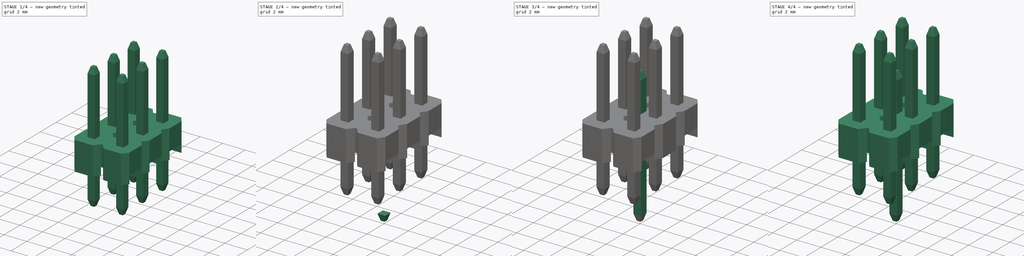
[diagram: build sequence overview — one tinted view per stage of 4, left to right]
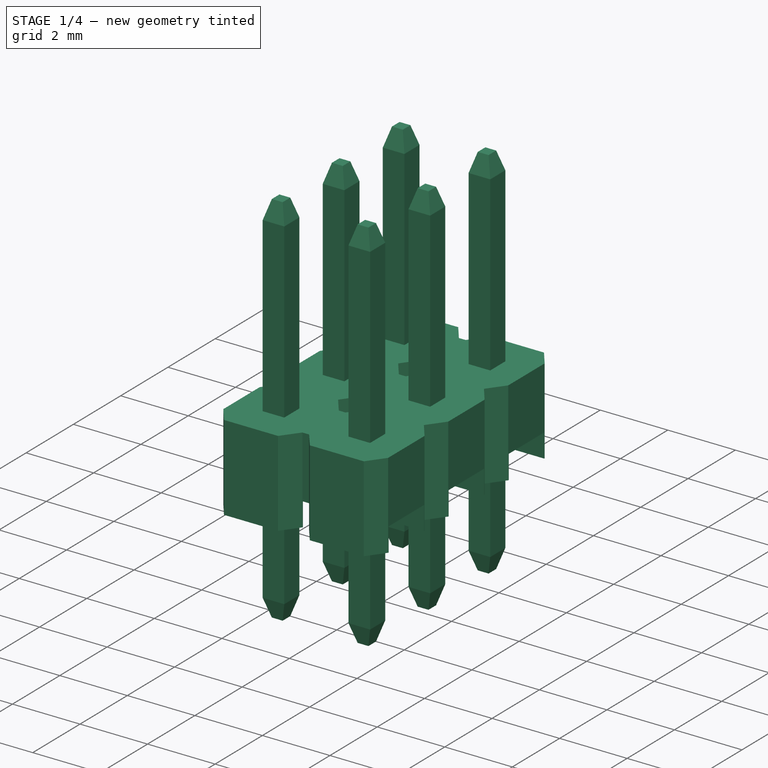
[diagram: stage 1 of 4 — iso view after this stage's code; geometry added in this stage tinted green]
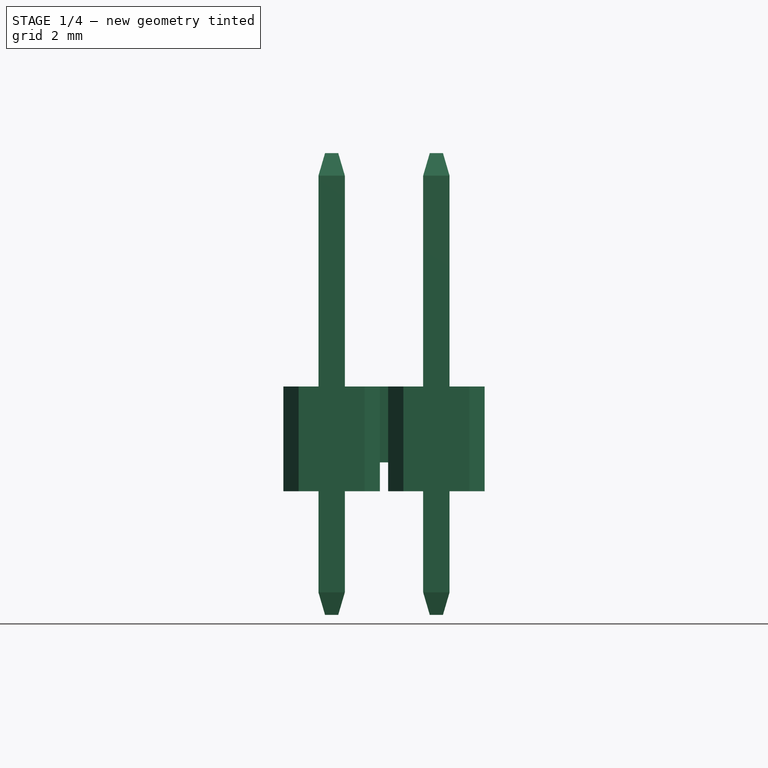
[diagram: stage 1 of 4 — front view after this stage's code; geometry added in this stage tinted green]
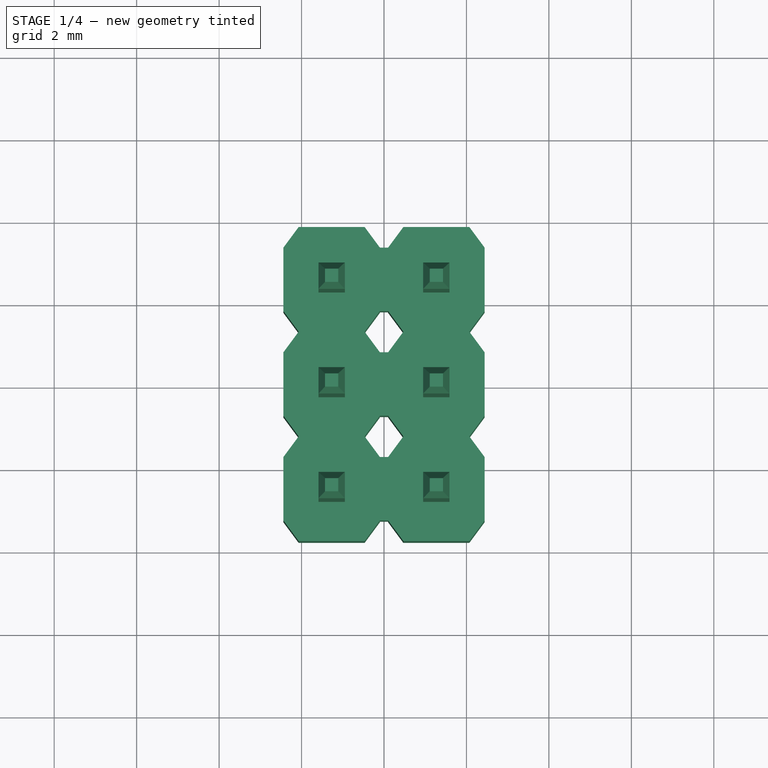
[diagram: stage 1 of 4 — top view after this stage's code; geometry added in this stage tinted green]
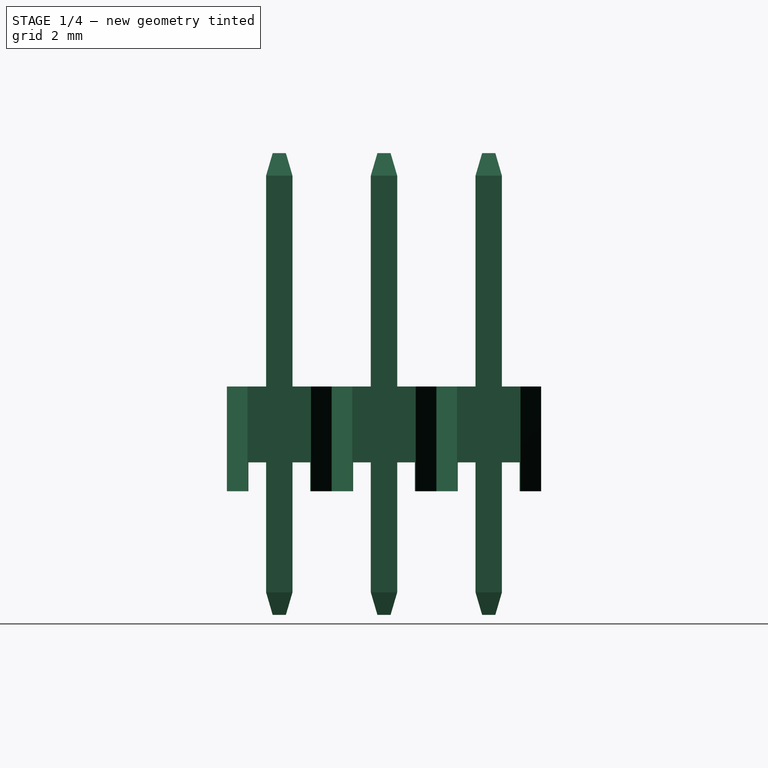
[diagram: stage 1 of 4 — right view after this stage's code; geometry added in this stage tinted green]
FCSTD DOCUMENT  (FreeCAD 0.14R3702 (Git))
Label: 2x3-male-pin-header
License: CC-BY 3.0
LicenseURL: http://creativecommons.org/licenses/by/3.0/
objects: Part::Feature×7, Sketcher::SketchObject×6, PartDesign::Pad×2, PartDesign::Pocket×2, App::DocumentObjectGroup×2, Part::MultiFuse×2, Part::Loft×1, Part::Mirroring×1, Part::Compound×1
note: 26 computed .brp shape members not serialized (recipe doc carries the construction recipe); baked Part::Feature solids carry a one-line shape summary decoded from their .brp

FEATURE [App::DocumentObjectGroup] Group001  label="pin-src"
  Group = -> [Loft,Pad001,Part__Mirroring,Fusion]
FEATURE [Part::Feature] Fusion001  label="left-pin"
  Placement = pos=(-1.27,0,2.6002) rot=(0,0,1;0rad)
  shape: bbox 0.64 x 0.64 x 11.2 mm, 14 faces (baked)
FEATURE [Part::Feature] Fusion002  label="right-pin"
  Placement = pos=(1.27,0,2.6002) rot=(0,0,1;0rad)
  shape: bbox 0.64 x 0.64 x 11.2 mm, 14 faces (baked)
FEATURE [Part::Feature] Pocket001001  label="pin-support"
  shape: bbox 4.88 x 2.54 x 2.54 mm, 30 faces (baked)
FEATURE [Part::MultiFuse] Fusion003  label="2x1-male-pin-header-master"
  Shapes = -> [Fusion001,Fusion002,Pocket001001]
FEATURE [Part::Feature] Fusion003001  label="2x1-male-pin-header-1"
  shape: bbox 4.88 x 2.54 x 11.2 mm, 66 faces (baked)
FEATURE [Part::Feature] Fusion003002  label="2x1-male-pin-header-2"
  Placement = pos=(0,-2.54,0) rot=(0,0,1;0rad)
  shape: bbox 4.88 x 2.54 x 11.2 mm, 66 faces (baked)
FEATURE [Part::Feature] Fusion003003  label="2x1-male-pin-header-003"
  Placement = pos=(0,2.54,0) rot=(0,0,1;0rad)
  shape: bbox 4.88 x 2.54 x 11.2 mm, 66 faces (baked)
FEATURE [Part::Compound] Compound  label="2x3-male-pin-header"
  Links = -> [Fusion003001,Fusion003002,Fusion003003]
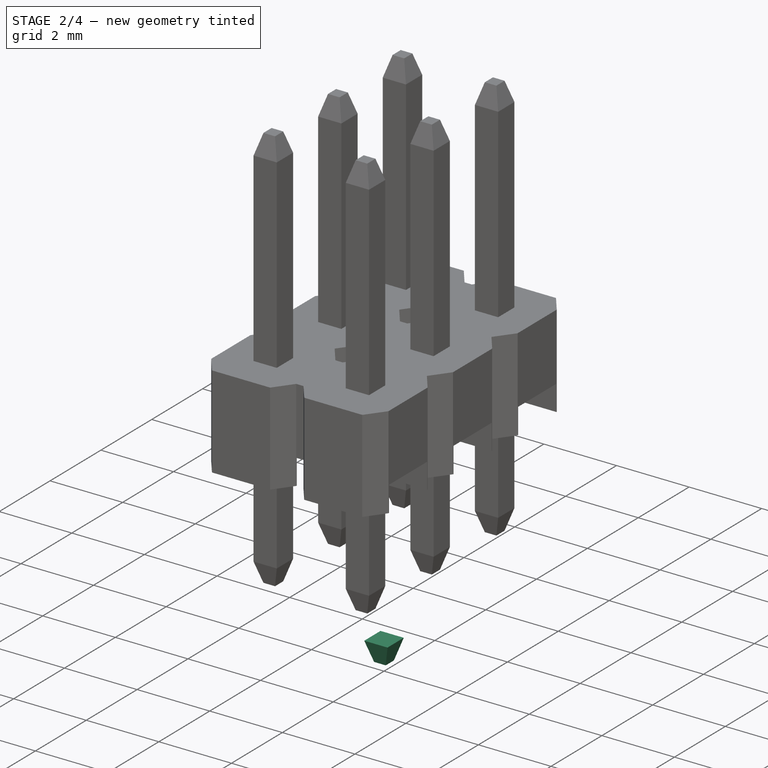
[diagram: stage 2 of 4 — iso view after this stage's code; geometry added in this stage tinted green]
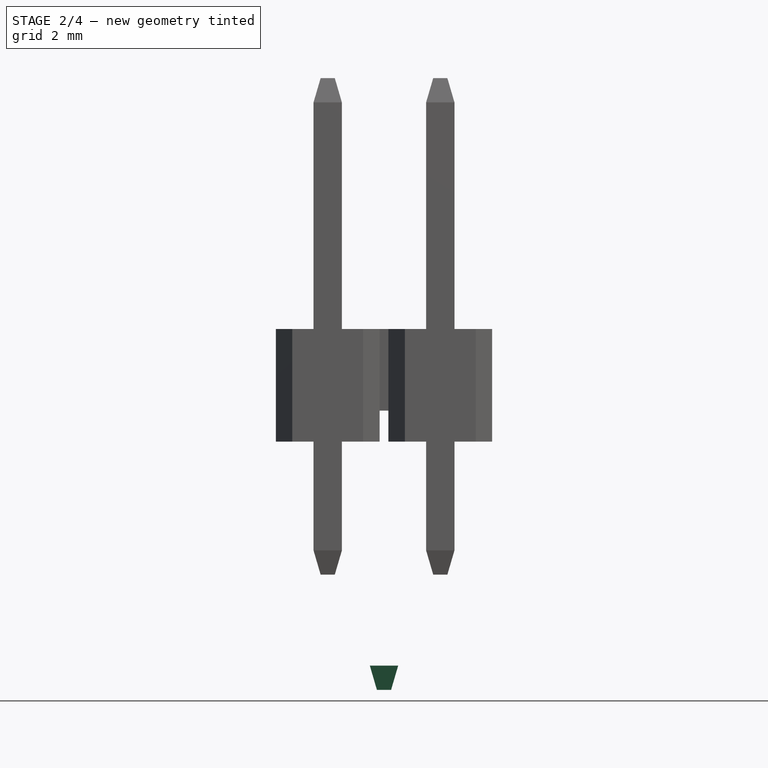
[diagram: stage 2 of 4 — front view after this stage's code; geometry added in this stage tinted green]
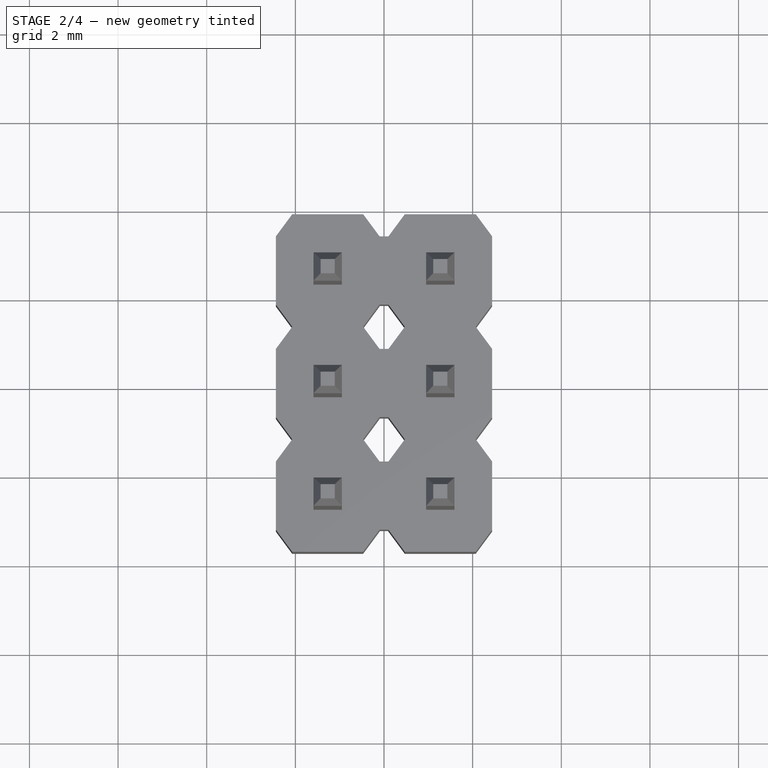
[diagram: stage 2 of 4 — top view after this stage's code; geometry added in this stage tinted green]
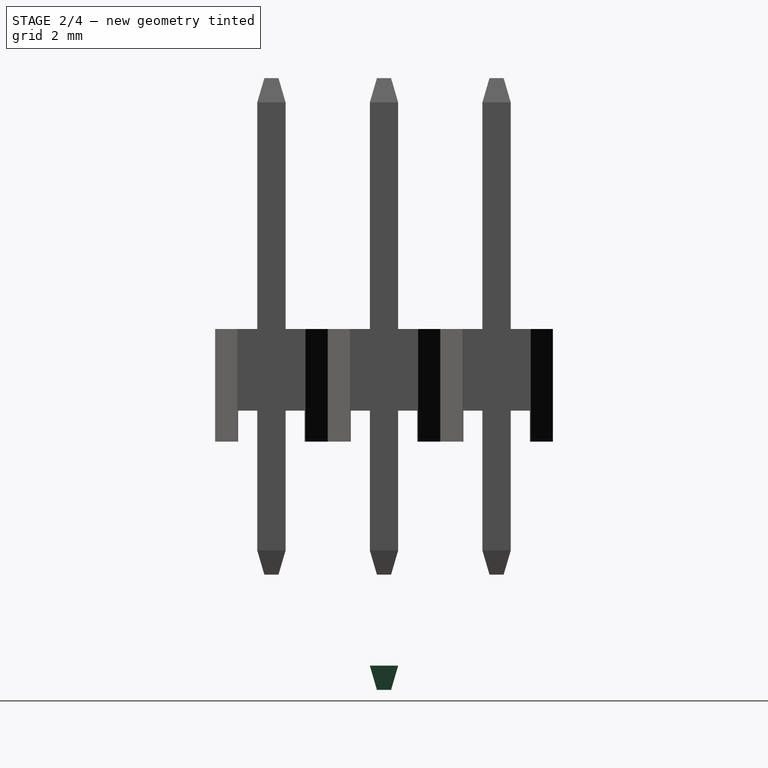
[diagram: stage 2 of 4 — right view after this stage's code; geometry added in this stage tinted green]
FEATURE [Sketcher::SketchObject] Sketch004  label="pin-end-bottom-base-sketch"
  sketch-geometry (4):
    g0: LineSegment StartX=-0.32 StartY=0.32 StartZ=0 EndX=0.32 EndY=0.32 EndZ=0
    g1: LineSegment StartX=0.32 StartY=0.32 StartZ=0 EndX=0.32 EndY=-0.32 EndZ=0
    g2: LineSegment StartX=0.32 StartY=-0.32 StartZ=0 EndX=-0.32 EndY=-0.32 EndZ=0
    g3: LineSegment StartX=-0.32 StartY=-0.32 StartZ=0 EndX=-0.32 EndY=0.32 EndZ=0
  constraints (11):
    c: Coincident(g0,g1)
    c: Coincident(g1,g2)
    c: Coincident(g2,g3)
    c: Coincident(g3,g0)
    c: Horizontal(g0)
    c: Horizontal(g2)
    c: Vertical(g1)
    c: Vertical(g3)
    c: Symmetric(g0,g1,g-1)
    c: Equal(g0,g3)
    c: DistanceX(g0) = 0.64
FEATURE [Sketcher::SketchObject] Sketch005  label="pin-end-top-base-sketch"
  Placement = pos=(0,0,0.546) rot=(0,0,1;0rad)
  sketch-geometry (4):
    g0: LineSegment StartX=-0.16 StartY=0.16 StartZ=0 EndX=0.16 EndY=0.16 EndZ=0
    g1: LineSegment StartX=0.16 StartY=0.16 StartZ=0 EndX=0.16 EndY=-0.16 EndZ=0
    g2: LineSegment StartX=0.16 StartY=-0.16 StartZ=0 EndX=-0.16 EndY=-0.16 EndZ=0
    g3: LineSegment StartX=-0.16 StartY=-0.16 StartZ=0 EndX=-0.16 EndY=0.16 EndZ=0
  constraints (11):
    c: Coincident(g0,g1)
    c: Coincident(g1,g2)
    c: Coincident(g2,g3)
    c: Coincident(g3,g0)
    c: Horizontal(g0)
    c: Horizontal(g2)
    c: Vertical(g1)
    c: Vertical(g3)
    c: Symmetric(g0,g1,g-1)
    c: Equal(g0,g3)
    c: DistanceX(g0) = 0.32
FEATURE [Part::Loft] Loft  label="pin-end"
  Closed = false
  Placement = pos=(0,0,5.054) rot=(0,0,1;0rad)
  Ruled = false
  Sections = -> [Sketch004,Sketch005]
  Solid = true
FEATURE [Part::Mirroring] Part__Mirroring  label="pin-end (Mirror #1)"
  Base = (0,0,0)
  Normal = (0,0,1)
  Source = -> Loft
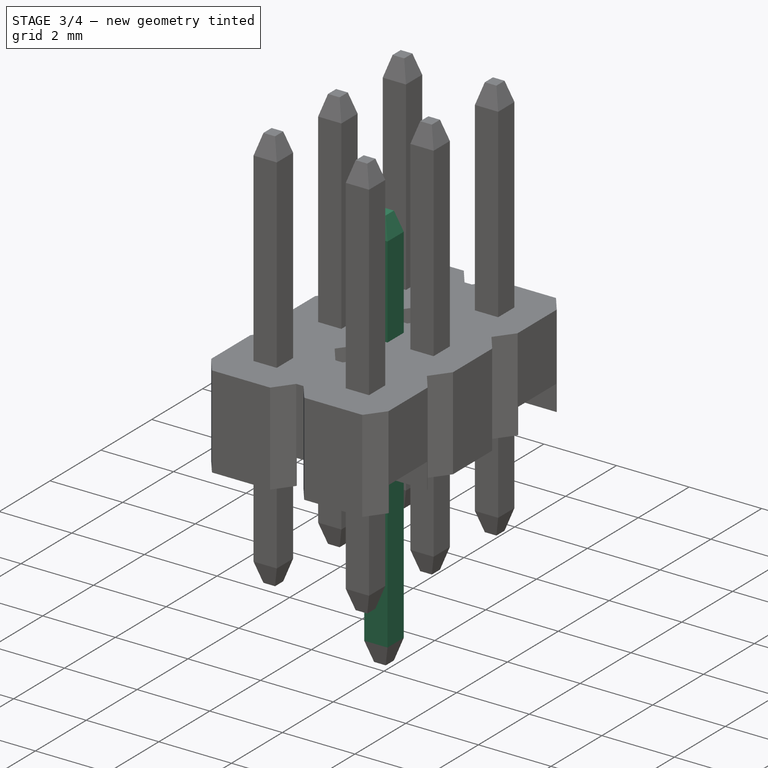
[diagram: stage 3 of 4 — iso view after this stage's code; geometry added in this stage tinted green]
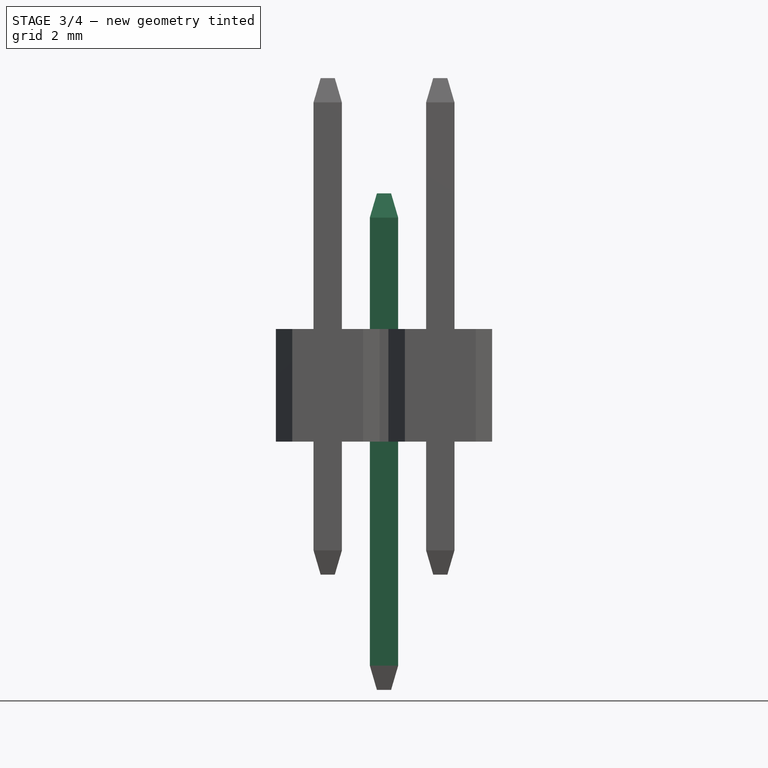
[diagram: stage 3 of 4 — front view after this stage's code; geometry added in this stage tinted green]
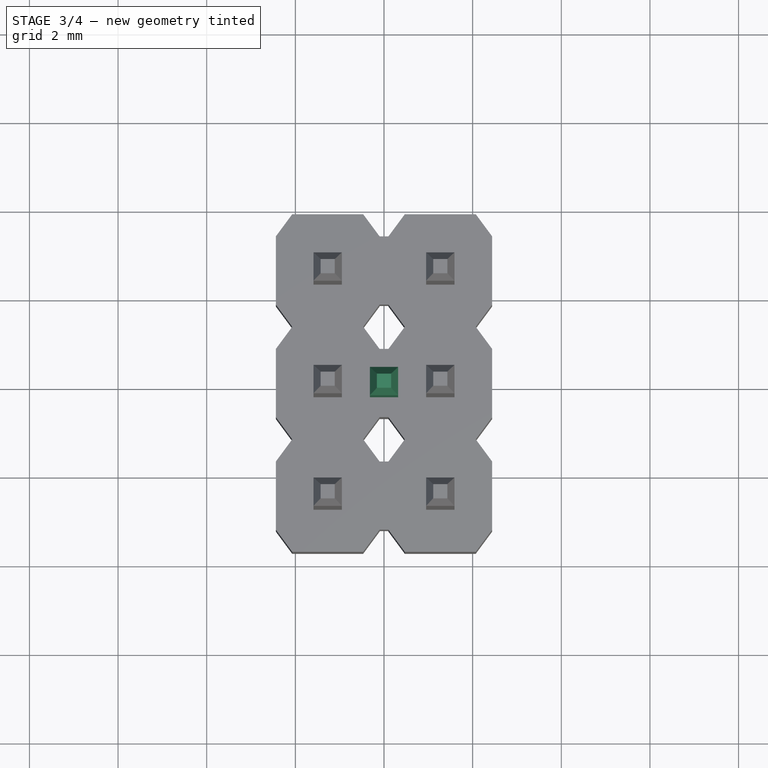
[diagram: stage 3 of 4 — top view after this stage's code; geometry added in this stage tinted green]
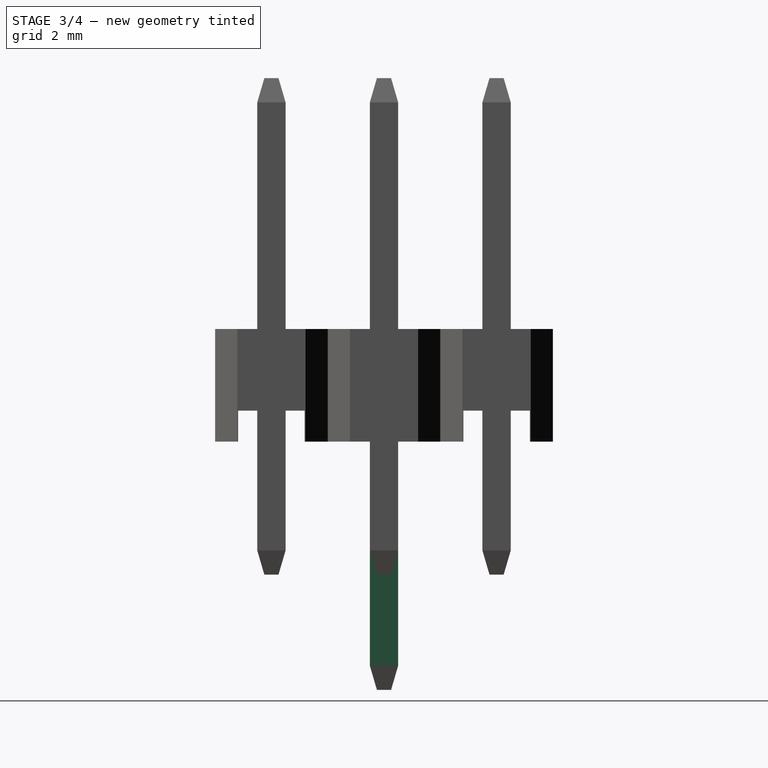
[diagram: stage 3 of 4 — right view after this stage's code; geometry added in this stage tinted green]
FEATURE [Part::Feature] Part__Feature  label="2x1-male-pin-header"
  Placement = pos=(0,0,0) rot=(-1,0,0;1.5708rad)
  shape: bbox 4.98 x 2.5 x 11.2 mm, 62 faces (baked)
FEATURE [Sketcher::SketchObject] Sketch  label="pin-support-main-sketch"
  sketch-geometry (18):
    g0: LineSegment StartX=-2.44 StartY=-0.77 StartZ=0 EndX=-2.44 EndY=0.77 EndZ=0
    g1: LineSegment StartX=-2.44 StartY=0.77 StartZ=0 EndX=-2.07 EndY=1.27 EndZ=0
    g2: LineSegment StartX=-2.07 StartY=1.27 StartZ=0 EndX=-0.47 EndY=1.27 EndZ=0
    g3: LineSegment StartX=-0.47 StartY=1.27 StartZ=0 EndX=-0.1 EndY=0.77 EndZ=0
    g4: LineSegment StartX=-0.1 StartY=0.77 StartZ=0 EndX=0.1 EndY=0.77 EndZ=0
    g5: LineSegment [constr] StartX=-1.27 StartY=1.27 StartZ=0 EndX=-1.27 EndY=-1.27 EndZ=0
    g6: LineSegment [constr] StartX=-2.44 StartY=0.77 StartZ=0 EndX=-0.1 EndY=0.77 EndZ=0
    g7: LineSegment StartX=0.1 StartY=0.77 StartZ=0 EndX=0.47 EndY=1.27 EndZ=0
    g8: LineSegment StartX=0.47 StartY=1.27 StartZ=0 EndX=2.07 EndY=1.27 EndZ=0
    g9: LineSegment StartX=2.07 StartY=1.27 StartZ=0 EndX=2.44 EndY=0.77 EndZ=0
    g10: LineSegment StartX=2.44 StartY=0.77 StartZ=0 EndX=2.44 EndY=-0.77 EndZ=0
    g11: LineSegment StartX=2.44 StartY=-0.77 StartZ=0 EndX=2.07 EndY=-1.27 EndZ=0
    g12: LineSegment StartX=2.07 StartY=-1.27 StartZ=0 EndX=0.47 EndY=-1.27 EndZ=0
    g13: LineSegment StartX=0.47 StartY=-1.27 StartZ=0 EndX=0.1 EndY=-0.77 EndZ=0
    g14: LineSegment StartX=0.1 StartY=-0.77 StartZ=0 EndX=-0.1 EndY=-0.77 EndZ=0
    g15: LineSegment StartX=-0.1 StartY=-0.77 StartZ=0 EndX=-0.47 EndY=-1.27 EndZ=0
    g16: LineSegment StartX=-0.47 StartY=-1.27 StartZ=0 EndX=-2.07 EndY=-1.27 EndZ=0
    g17: LineSegment StartX=-2.07 StartY=-1.27 StartZ=0 EndX=-2.44 EndY=-0.77 EndZ=0
  constraints (46):
    c: Coincident(g0,g1)
    c: Coincident(g1,g2)
    c: Coincident(g2,g3)
    c: Coincident(g3,g4)
    c: Horizontal(g4)
    c: Symmetric(g1,g2,g5)
    c: PointOnObject(g5,g2)
    c: DistanceX(g2) = 1.6
    c: DistanceY(g2,g3) = -0.5
    c: Horizontal(g6)
    c: Coincident(g6,g0)
    c: Coincident(g6,g3)
    c: Symmetric(g3,g4,g-2)
    c: DistanceX(g4) = 0.2
    c: DistanceX(g3,g2) = -0.37
    c: Symmetric(g0,g0,g-1)
    c: Coincident(g4,g7)
    c: Coincident(g7,g8)
    c: Horizontal(g8)
    c: Coincident(g8,g9)
    c: Coincident(g9,g10)
    c: Vertical(g10)
    c: Coincident(g10,g11)
    c: Coincident(g11,g12)
    c: Horizontal(g12)
    c: Coincident(g12,g13)
    c: Coincident(g13,g14)
    c: Horizontal(g14)
    c: Coincident(g14,g15)
    c: Coincident(g15,g16)
    c: Horizontal(g16)
    c: Coincident(g16,g17)
    c: Coincident(g17,g0)
    c: Symmetric(g7,g2,g-2)
    c: Symmetric(g9,g0,g-2)
    c: Symmetric(g0,g3,g5)
    c: Symmetric(g10,g0,g-2)
    c: Symmetric(g1,g16,g-1)
    c: Symmetric(g15,g2,g-1)
    c: Symmetric(g14,g3,g-1)
    c: Symmetric(g13,g14,g-2)
    c: Symmetric(g12,g7,g-1)
    c: Symmetric(g8,g11,g-1)
    c: Symmetric(g8,g1,g-2)
    c: PointOnObject(g5,g16)
    c: DistanceY(g5) = -2.54
FEATURE [PartDesign::Pad] Pad  label="pin-support-main"
  Length = 2.54
  Length2 = 100
  Sketch = -> Sketch
  Type = 0
FEATURE [Sketcher::SketchObject] Sketch003  label="pin-base-sketch"
  sketch-geometry (4):
    g0: LineSegment StartX=-0.32 StartY=0.32 StartZ=0 EndX=0.32 EndY=0.32 EndZ=0
    g1: LineSegment StartX=0.32 StartY=0.32 StartZ=0 EndX=0.32 EndY=-0.32 EndZ=0
    g2: LineSegment StartX=0.32 StartY=-0.32 StartZ=0 EndX=-0.32 EndY=-0.32 EndZ=0
    g3: LineSegment StartX=-0.32 StartY=-0.32 StartZ=0 EndX=-0.32 EndY=0.32 EndZ=0
  constraints (11):
    c: Coincident(g0,g1)
    c: Coincident(g1,g2)
    c: Coincident(g2,g3)
    c: Coincident(g3,g0)
    c: Horizontal(g0)
    c: Horizontal(g2)
    c: Vertical(g1)
    c: Vertical(g3)
    c: Symmetric(g0,g1,g-1)
    c: Equal(g0,g3)
    c: DistanceX(g0) = 0.64
FEATURE [App::DocumentObjectGroup] Group  label="pin-support-src"
  Group = -> [Pad,Pocket,Pocket001]
FEATURE [PartDesign::Pad] Pad001  label="pin-base"
  Length = 10.108
  Length2 = 100
  Midplane = true
  Sketch = -> Sketch003
  Type = 0
FEATURE [Part::MultiFuse] Fusion  label="pin"
  Shapes = -> [Pad001,Loft,Part__Mirroring]
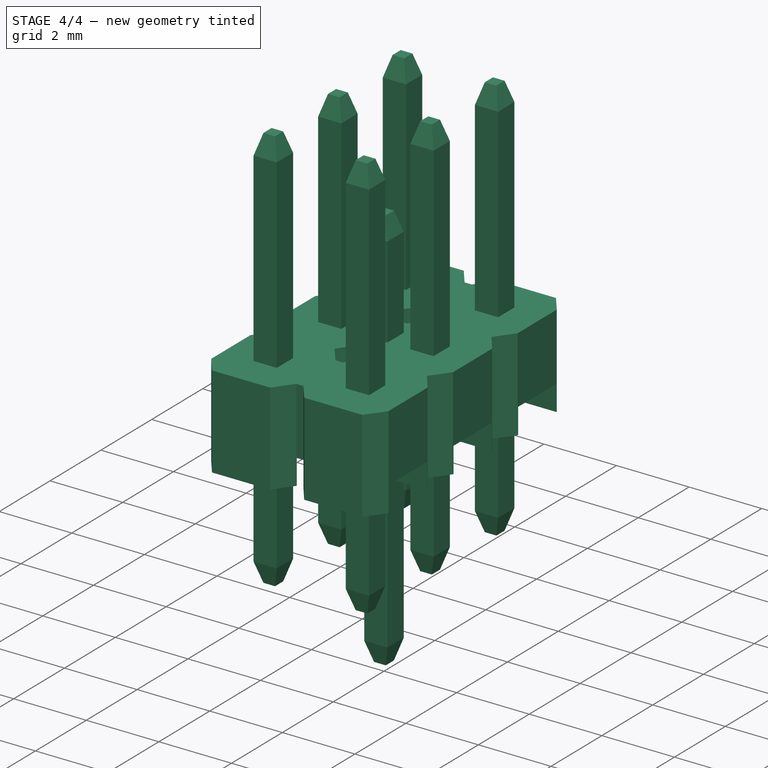
[diagram: stage 4 of 4 — iso view after this stage's code; geometry added in this stage tinted green]
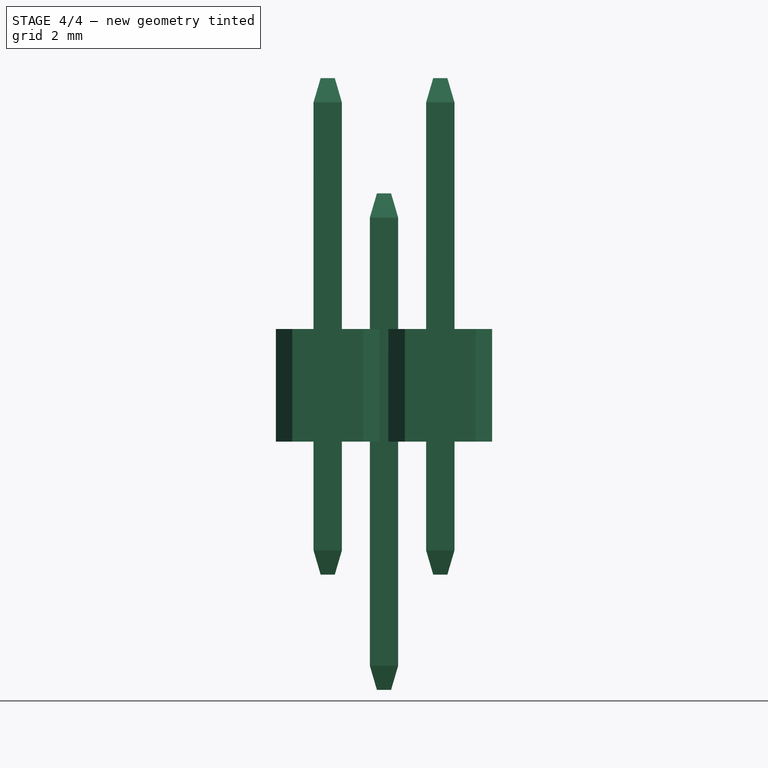
[diagram: stage 4 of 4 — front view after this stage's code; geometry added in this stage tinted green]
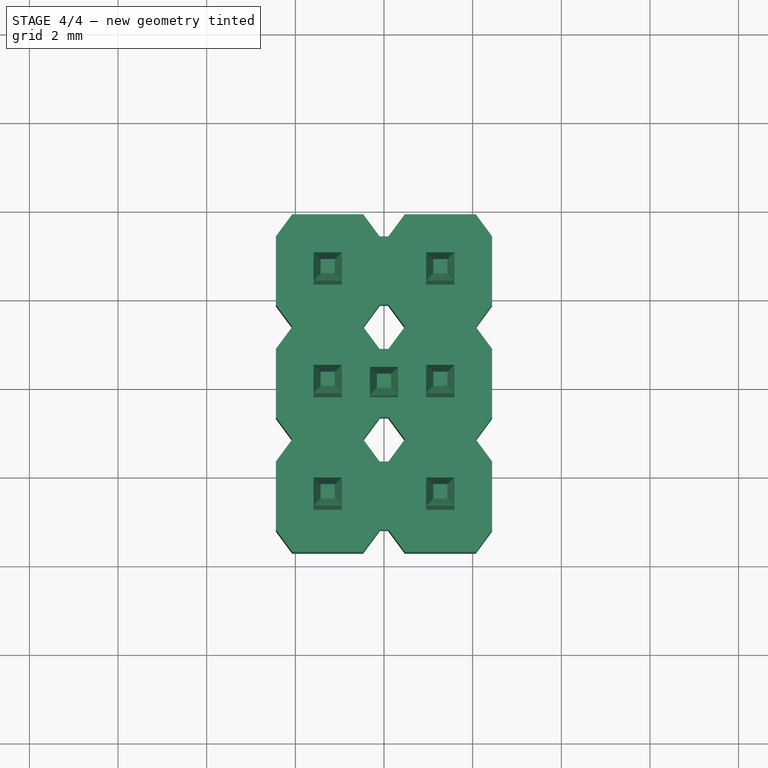
[diagram: stage 4 of 4 — top view after this stage's code; geometry added in this stage tinted green]
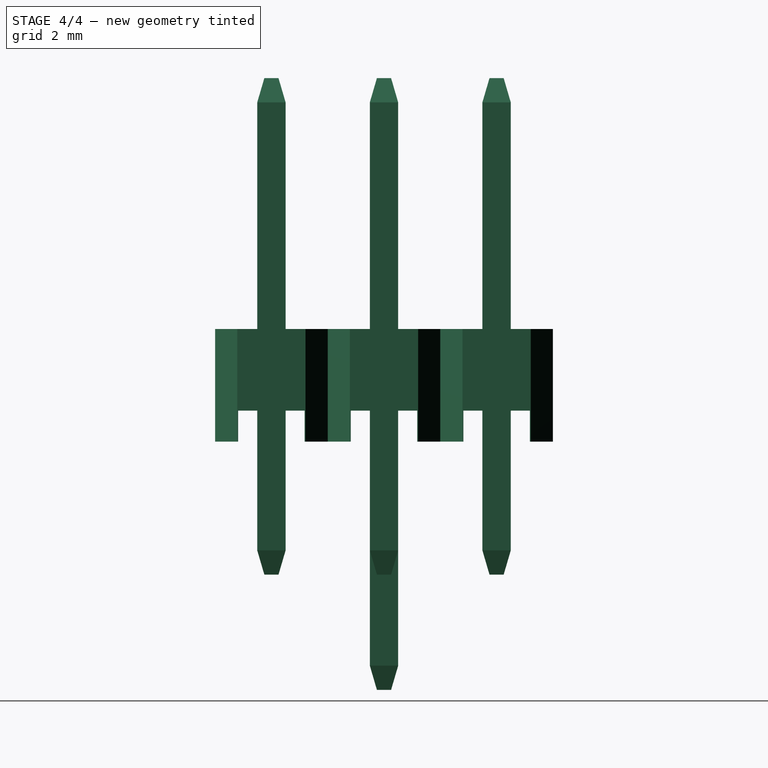
[diagram: stage 4 of 4 — right view after this stage's code; geometry added in this stage tinted green]
FEATURE [Sketcher::SketchObject] Sketch001  label="pin-support-cutout1-sketch"
  Placement = pos=(0,-0.77,0) rot=(1,0,0;1.5708rad)
  Support = -> Pad [Face13]
  sketch-geometry (5):
    g0: LineSegment StartX=-0.1 StartY=0.7 StartZ=0 EndX=0.1 EndY=0.7 EndZ=0
    g1: LineSegment StartX=0.1 StartY=0.7 StartZ=0 EndX=0.1 EndY=-0.1 EndZ=0
    g2: LineSegment StartX=0.1 StartY=-0.1 StartZ=0 EndX=-0.1 EndY=-0.1 EndZ=0
    g3: LineSegment StartX=-0.1 StartY=-0.1 StartZ=0 EndX=-0.1 EndY=0.7 EndZ=0
    g4: LineSegment [constr] StartX=-0.1 StartY=0 StartZ=0 EndX=0.1 EndY=0 EndZ=0
  constraints (16):
    c: Coincident(g0,g1)
    c: Coincident(g1,g2)
    c: Coincident(g2,g3)
    c: Coincident(g3,g0)
    c: Horizontal(g0)
    c: Horizontal(g2)
    c: Vertical(g1)
    c: Vertical(g3)
    c: Horizontal(g4)
    c: PointOnObject(g4,g3)
    c: PointOnObject(g4,g1)
    c: Symmetric(g0,g0,g-2)
    c: PointOnObject(g4,g-1)
    c: DistanceY(g1,g4) = 0.1
    c: DistanceY(g0,g4) = -0.7
    c: DistanceX(g0) = 0.2
FEATURE [PartDesign::Pocket] Pocket  label="pin-support-cutout-1"
  Length = 5
  Sketch = -> Sketch001
  Type = 1
FEATURE [Sketcher::SketchObject] Sketch002  label="pin-support-cutout-2-sketch"
  Placement = pos=(2.44,0,0) rot=(0.57735,0.57735,0.57735;2.0944rad)
  Support = -> Pocket [Face15]
  sketch-geometry (7):
    g0: LineSegment StartX=-0.75 StartY=0.7 StartZ=0 EndX=0.75 EndY=0.7 EndZ=0
    g1: LineSegment StartX=0.75 StartY=0.7 StartZ=0 EndX=0.75 EndY=0 EndZ=0
    g2: LineSegment [constr] StartX=0.75 StartY=0 StartZ=0 EndX=-0.75 EndY=0 EndZ=0
    g3: LineSegment StartX=-0.75 StartY=0 StartZ=0 EndX=-0.75 EndY=0.7 EndZ=0
    g4: LineSegment StartX=-0.75 StartY=0 StartZ=0 EndX=-0.75 EndY=-0.1 EndZ=0
    g5: LineSegment StartX=-0.75 StartY=-0.1 StartZ=0 EndX=0.75 EndY=-0.1 EndZ=0
    g6: LineSegment StartX=0.75 StartY=-0.1 StartZ=0 EndX=0.75 EndY=0 EndZ=0
  constraints (20):
    c: Coincident(g0,g1)
    c: Coincident(g1,g2)
    c: Coincident(g2,g3)
    c: Coincident(g3,g0)
    c: Horizontal(g0)
    c: Horizontal(g2)
    c: Vertical(g1)
    c: Vertical(g3)
    c: Symmetric(g2,g1,g-2)
    c: PointOnObject(g2,g-1)
    c: DistanceY(g1) = -0.7
    c: DistanceX(g0) = 1.5
    c: Coincident(g4,g5)
    c: Horizontal(g5)
    c: Coincident(g5,g6)
    c: Vertical(g4)
    c: Vertical(g6)
    c: Coincident(g4,g2)
    c: Coincident(g6,g1)
    c: DistanceY(g1,g5) = -0.1
FEATURE [PartDesign::Pocket] Pocket001  label="pin-support-cutout-2"
  Length = 5
  Sketch = -> Sketch002
  Type = 1
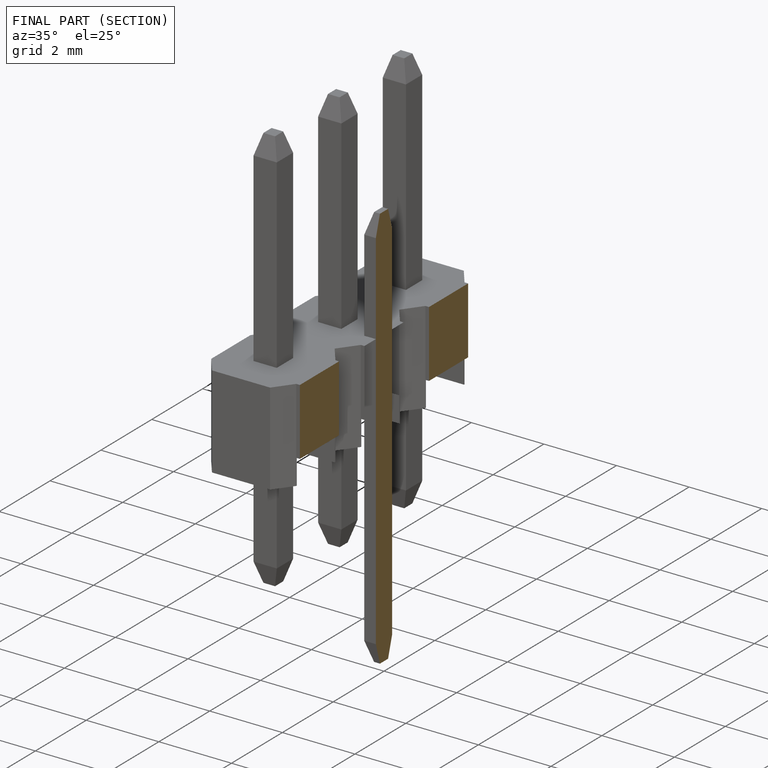
[diagram: finished part — half-section view (interior)]
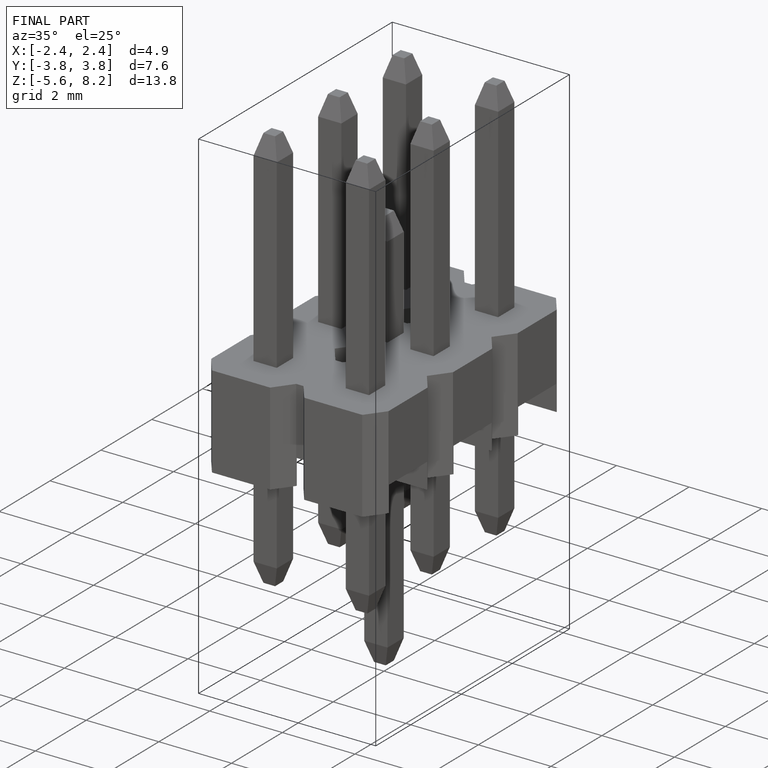
[diagram: finished part — iso view with bounding-box wireframe]
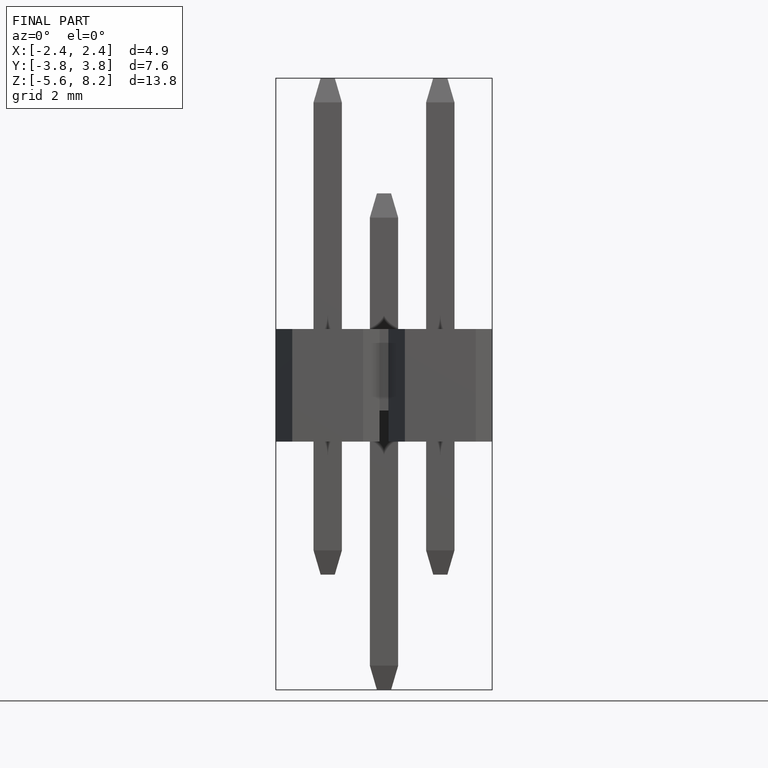
[diagram: finished part — front view with bounding-box wireframe]
